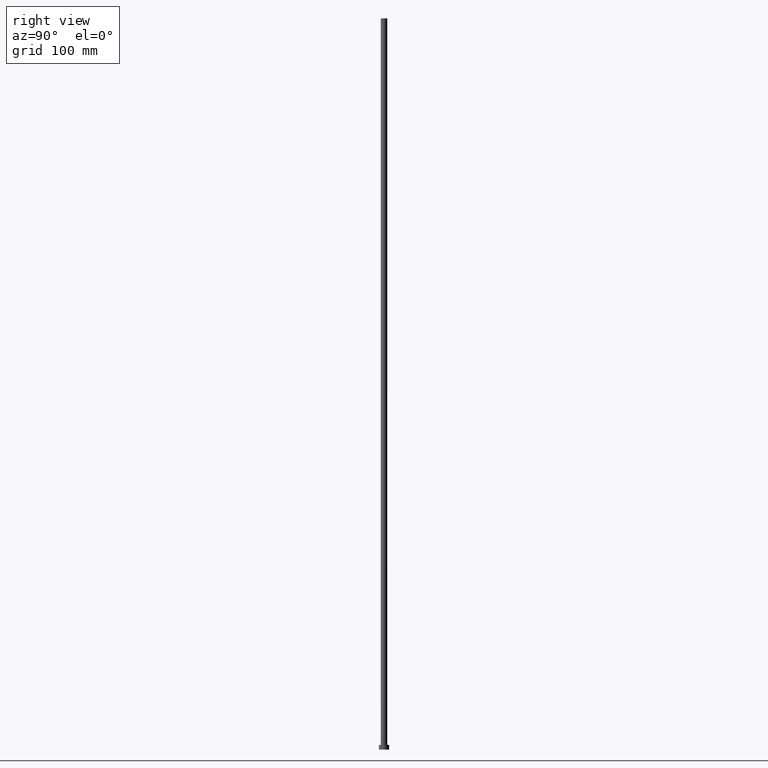
[diagram: clean part render]
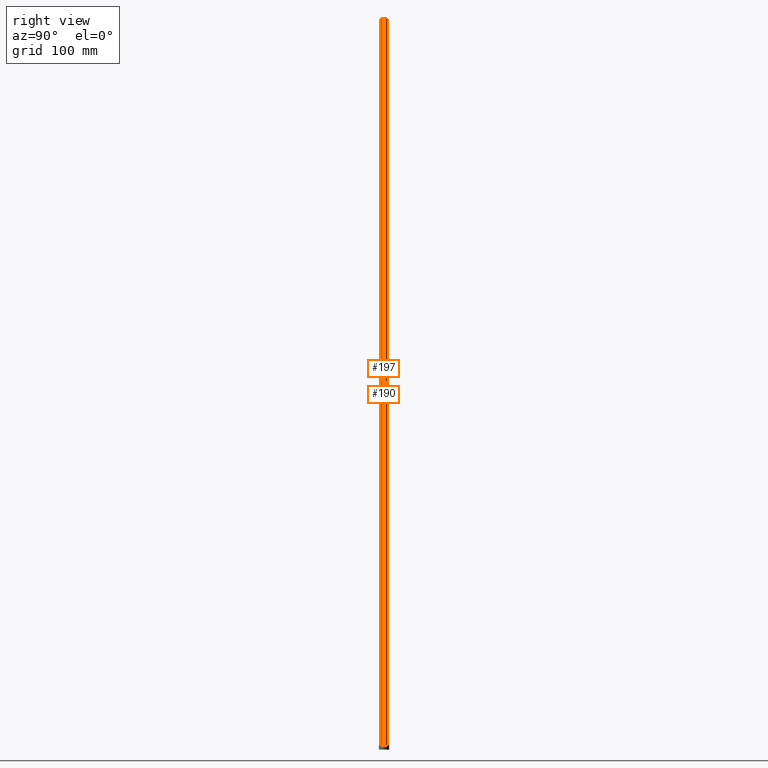
[diagram: same view with one multi-face feature highlighted, each face labeled with its STEP entity id]
A machine part, right view. The highlighted faces form ONE feature: a constant-radius fillet chain: 2 tangent blend faces with common blend radius 4.5 mm. The faces share edges in the B-rep.
Their STEP definitions:
[1] entity #190 (Cylinder):
#2 = ORIENTED_EDGE ( 'NONE', *, *, #218, .F. ) ;
#12 = CIRCLE ( 'NONE', #81, 4.500000000000000888 ) ;
#13 = FACE_OUTER_BOUND ( 'NONE', #237, .T. ) ;
#29 = DIRECTION ( 'NONE',  ( 0.000000000000000000, 0.000000000000000000, 1.000000000000000000 ) ) ;
#32 = AXIS2_PLACEMENT_3D ( 'NONE', #123, #161, #144 ) ;
#41 = DIRECTION ( 'NONE',  ( 1.000000000000000000, 0.000000000000000000, 0.000000000000000000 ) ) ;
#47 = CYLINDRICAL_SURFACE ( 'NONE', #32, 4.500000000000000888 ) ;
#54 = CARTESIAN_POINT ( 'NONE',  ( 0.000000000000000000, 0.000000000000000000, 1000.000000000000000 ) ) ;
#69 = DIRECTION ( 'NONE',  ( 1.000000000000000000, 0.000000000000000000, 0.000000000000000000 ) ) ;
#80 = VERTEX_POINT ( 'NONE', #107 ) ;
#81 = AXIS2_PLACEMENT_3D ( 'NONE', #54, #248, #69 ) ;
#88 = CARTESIAN_POINT ( 'NONE',  ( 4.500000000000000888, 5.510910596163089556E-16, 1000.000000000000000 ) ) ;
#91 = CARTESIAN_POINT ( 'NONE',  ( 4.500000000000000888, 5.510910596163089556E-16, 6.500000000000000000 ) ) ;
#101 = VERTEX_POINT ( 'NONE', #146 ) ;
#102 = AXIS2_PLACEMENT_3D ( 'NONE', #124, #29, #41 ) ;
#105 = VECTOR ( 'NONE', #224, 1000.000000000000000 ) ;
#107 = CARTESIAN_POINT ( 'NONE',  ( -4.500000000000000888, 0.000000000000000000, 1000.000000000000000 ) ) ;
#123 = CARTESIAN_POINT ( 'NONE',  ( 0.000000000000000000, 0.000000000000000000, 1000.000000000000000 ) ) ;
#124 = CARTESIAN_POINT ( 'NONE',  ( 0.000000000000000000, 0.000000000000000000, 6.500000000000000000 ) ) ;
#127 = LINE ( 'NONE', #227, #105 ) ;
#134 = ORIENTED_EDGE ( 'NONE', *, *, #199, .T. ) ;
#136 = VERTEX_POINT ( 'NONE', #91 ) ;
#142 = CIRCLE ( 'NONE', #102, 4.500000000000000888 ) ;
#144 = DIRECTION ( 'NONE',  ( -1.000000000000000000, 0.000000000000000000, 0.000000000000000000 ) ) ;
#146 = CARTESIAN_POINT ( 'NONE',  ( -4.500000000000000888, 0.000000000000000000, 6.500000000000000000 ) ) ;
#152 = VERTEX_POINT ( 'NONE', #88 ) ;
#160 = CARTESIAN_POINT ( 'NONE',  ( -4.500000000000000888, 0.000000000000000000, 1000.000000000000000 ) ) ;
#161 = DIRECTION ( 'NONE',  ( -0.000000000000000000, -0.000000000000000000, -1.000000000000000000 ) ) ;
#166 = VECTOR ( 'NONE', #228, 1000.000000000000000 ) ;
#168 = EDGE_CURVE ( 'NONE', #136, #101, #142, .T. ) ;
#183 = LINE ( 'NONE', #160, #166 ) ;
#189 = EDGE_CURVE ( 'NONE', #80, #101, #183, .T. ) ;
#190 = ADVANCED_FACE ( 'NONE', ( #13 ), #47, .T. ) ;
#199 = EDGE_CURVE ( 'NONE', #152, #136, #127, .T. ) ;
#203 = ORIENTED_EDGE ( 'NONE', *, *, #168, .T. ) ;
#218 = EDGE_CURVE ( 'NONE', #152, #80, #12, .T. ) ;
#219 = ORIENTED_EDGE ( 'NONE', *, *, #189, .F. ) ;
#224 = DIRECTION ( 'NONE',  ( -0.000000000000000000, -0.000000000000000000, -1.000000000000000000 ) ) ;
#227 = CARTESIAN_POINT ( 'NONE',  ( 4.500000000000000888, 5.510910596163089556E-16, 1000.000000000000000 ) ) ;
#228 = DIRECTION ( 'NONE',  ( -0.000000000000000000, -0.000000000000000000, -1.000000000000000000 ) ) ;
#237 = EDGE_LOOP ( 'NONE', ( #2, #134, #203, #219 ) ) ;
#248 = DIRECTION ( 'NONE',  ( 0.000000000000000000, 0.000000000000000000, 1.000000000000000000 ) ) ;
[2] entity #197 (Cylinder):
#10 = DIRECTION ( 'NONE',  ( -0.000000000000000000, -0.000000000000000000, -1.000000000000000000 ) ) ;
#16 = FACE_OUTER_BOUND ( 'NONE', #202, .T. ) ;
#20 = CARTESIAN_POINT ( 'NONE',  ( 0.000000000000000000, 0.000000000000000000, 1000.000000000000000 ) ) ;
#24 = CIRCLE ( 'NONE', #222, 4.500000000000000888 ) ;
#25 = DIRECTION ( 'NONE',  ( 1.000000000000000000, 0.000000000000000000, 0.000000000000000000 ) ) ;
#77 = EDGE_CURVE ( 'NONE', #101, #136, #225, .T. ) ;
#80 = VERTEX_POINT ( 'NONE', #107 ) ;
#84 = AXIS2_PLACEMENT_3D ( 'NONE', #201, #117, #25 ) ;
#87 = CARTESIAN_POINT ( 'NONE',  ( 0.000000000000000000, 0.000000000000000000, 1000.000000000000000 ) ) ;
#88 = CARTESIAN_POINT ( 'NONE',  ( 4.500000000000000888, 5.510910596163089556E-16, 1000.000000000000000 ) ) ;
#91 = CARTESIAN_POINT ( 'NONE',  ( 4.500000000000000888, 5.510910596163089556E-16, 6.500000000000000000 ) ) ;
#101 = VERTEX_POINT ( 'NONE', #146 ) ;
#105 = VECTOR ( 'NONE', #224, 1000.000000000000000 ) ;
#107 = CARTESIAN_POINT ( 'NONE',  ( -4.500000000000000888, 0.000000000000000000, 1000.000000000000000 ) ) ;
#117 = DIRECTION ( 'NONE',  ( 0.000000000000000000, 0.000000000000000000, 1.000000000000000000 ) ) ;
#122 = DIRECTION ( 'NONE',  ( -1.000000000000000000, 0.000000000000000000, 0.000000000000000000 ) ) ;
#125 = AXIS2_PLACEMENT_3D ( 'NONE', #87, #10, #122 ) ;
#127 = LINE ( 'NONE', #227, #105 ) ;
#136 = VERTEX_POINT ( 'NONE', #91 ) ;
#137 = ORIENTED_EDGE ( 'NONE', *, *, #226, .F. ) ;
#146 = CARTESIAN_POINT ( 'NONE',  ( -4.500000000000000888, 0.000000000000000000, 6.500000000000000000 ) ) ;
#152 = VERTEX_POINT ( 'NONE', #88 ) ;
#158 = ORIENTED_EDGE ( 'NONE', *, *, #199, .F. ) ;
#160 = CARTESIAN_POINT ( 'NONE',  ( -4.500000000000000888, 0.000000000000000000, 1000.000000000000000 ) ) ;
#166 = VECTOR ( 'NONE', #228, 1000.000000000000000 ) ;
#171 = DIRECTION ( 'NONE',  ( 0.000000000000000000, 0.000000000000000000, 1.000000000000000000 ) ) ;
#183 = LINE ( 'NONE', #160, #166 ) ;
#189 = EDGE_CURVE ( 'NONE', #80, #101, #183, .T. ) ;
#197 = ADVANCED_FACE ( 'NONE', ( #16 ), #238, .T. ) ;
#199 = EDGE_CURVE ( 'NONE', #152, #136, #127, .T. ) ;
#201 = CARTESIAN_POINT ( 'NONE',  ( 0.000000000000000000, 0.000000000000000000, 6.500000000000000000 ) ) ;
#202 = EDGE_LOOP ( 'NONE', ( #158, #137, #253, #221 ) ) ;
#216 = DIRECTION ( 'NONE',  ( 1.000000000000000000, 0.000000000000000000, 0.000000000000000000 ) ) ;
#221 = ORIENTED_EDGE ( 'NONE', *, *, #77, .T. ) ;
#222 = AXIS2_PLACEMENT_3D ( 'NONE', #20, #171, #216 ) ;
#224 = DIRECTION ( 'NONE',  ( -0.000000000000000000, -0.000000000000000000, -1.000000000000000000 ) ) ;
#225 = CIRCLE ( 'NONE', #84, 4.500000000000000888 ) ;
#226 = EDGE_CURVE ( 'NONE', #80, #152, #24, .T. ) ;
#227 = CARTESIAN_POINT ( 'NONE',  ( 4.500000000000000888, 5.510910596163089556E-16, 1000.000000000000000 ) ) ;
#228 = DIRECTION ( 'NONE',  ( -0.000000000000000000, -0.000000000000000000, -1.000000000000000000 ) ) ;
#238 = CYLINDRICAL_SURFACE ( 'NONE', #125, 4.500000000000000888 ) ;
#253 = ORIENTED_EDGE ( 'NONE', *, *, #189, .T. ) ;